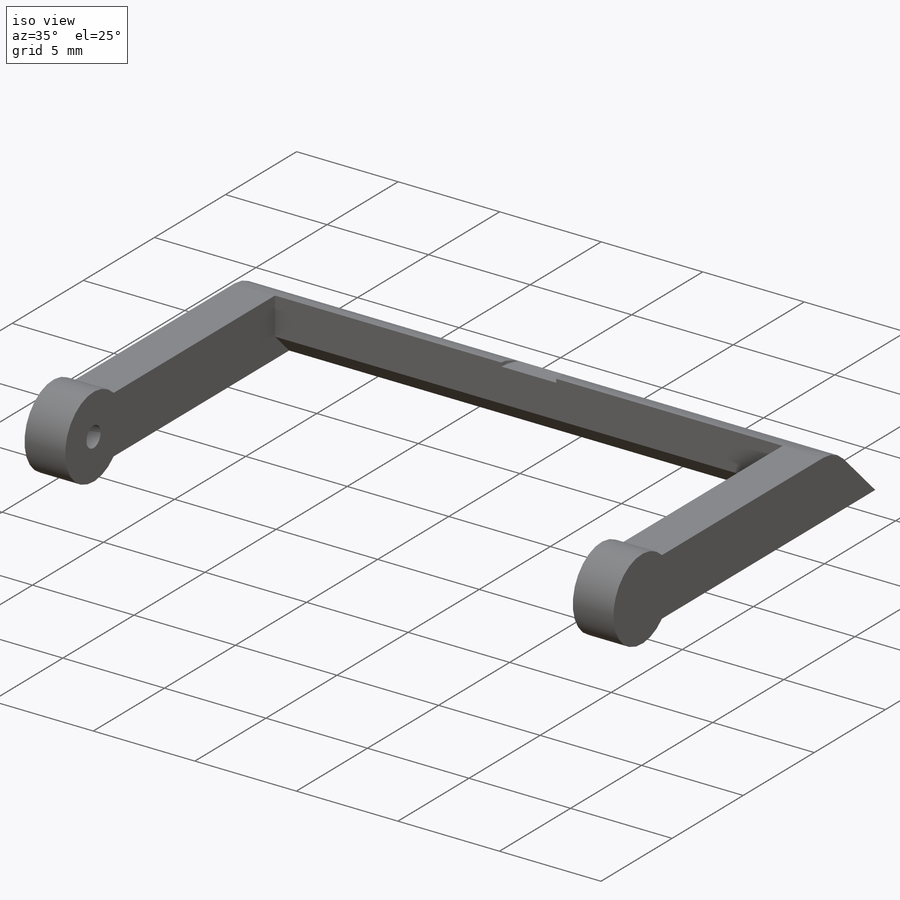
[diagram: iso view]
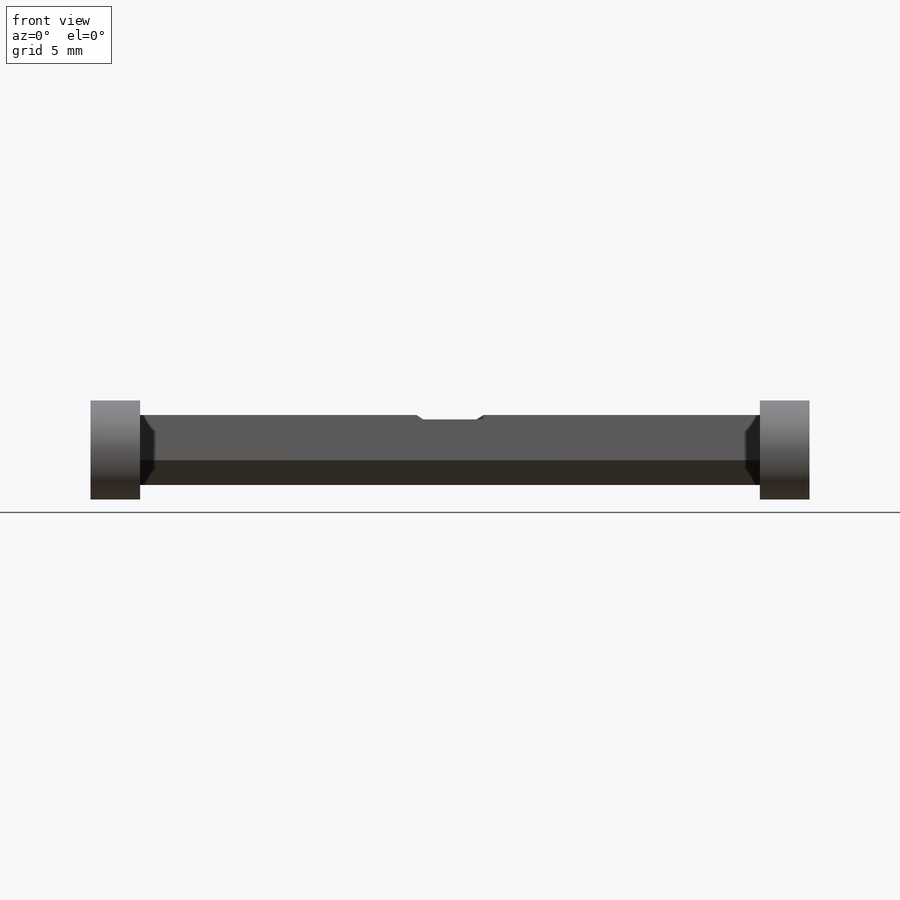
[diagram: front view]
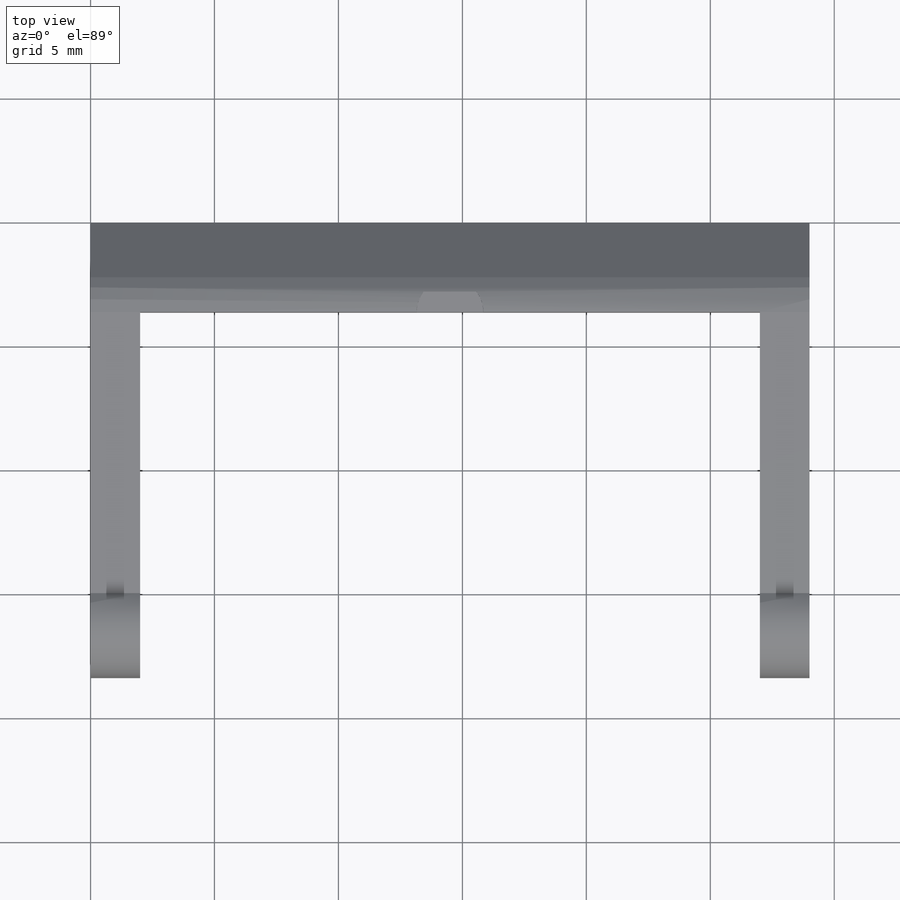
[diagram: top view]
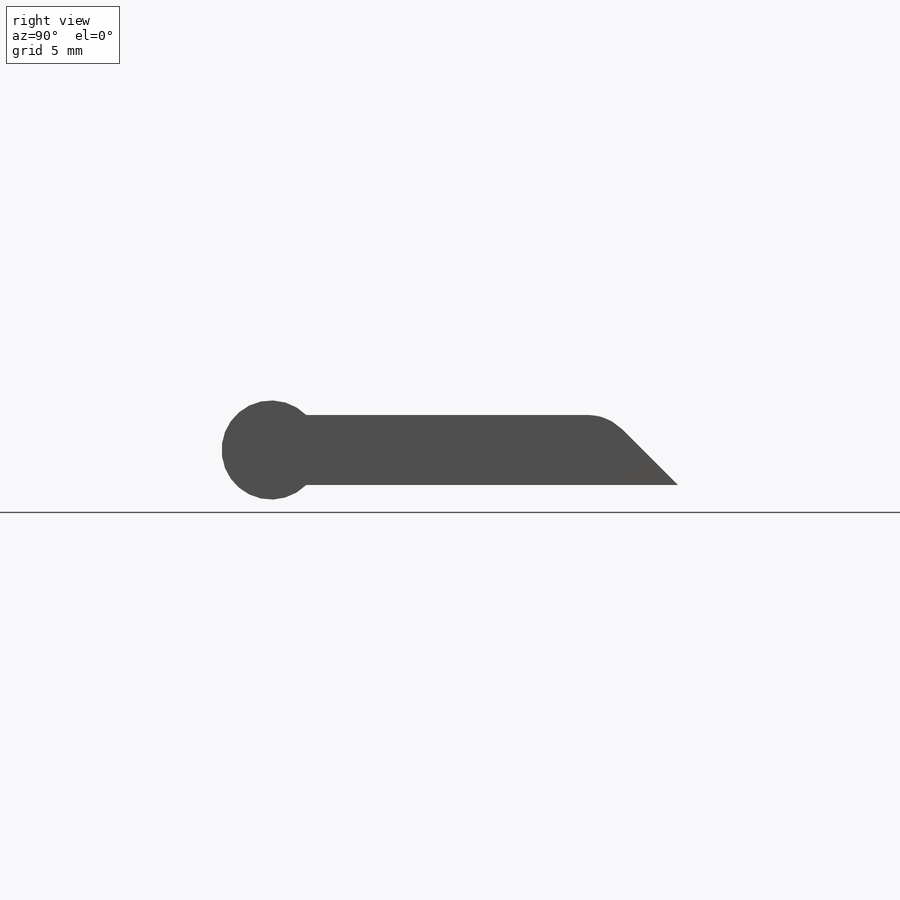
[diagram: right view]
SOLIDWORKS PART (.sldprt)
format: sldprt  version: not decoded by parser v0  size: 179,712 bytes
history: native  units: mm
features: plane x5, sketch x5, cut_extrude x4, material x1, extrude x1, chamfer x1 (+8 scaffold rows collapsed)
feature tree (25):
  scaffold x8  (default folders/planes/origin — collapsed)
  material  "Material <sin especificar>"
  plane  "Alzado"
  plane  "Planta"
  plane  "Vista lateral"
  sketch  "Croquis1"  dims[c1.D4=2.0mm c1.D2=2.0mm c1.D1=15.0mm c2.D2=4.0mm c2.D3=4.0mm c3.D3=45.0deg]
  extrude  "Saliente-Extruir1"  Depth=29mm
  plane  "Plano1"  Offset=0mm
  sketch  "Croquis2"  dims[D1=2.0mm D2=2.0mm]
  cut_extrude  "Cortar-Extruir1"  Depth=29mm
  chamfer  "Chaflán1"  Distance=1mm Angle=45deg
  sketch  "Croquis3"  dims[D1=1.0mm]
  cut_extrude  "Cortar-Extruir2"  Depth=1mm
  sketch  "Croquis4"  dims[D1=1.0mm]
  cut_extrude  "Cortar-Extruir3"  Depth=1mm
  plane  "Plano2"  Offset=2.85mm
  sketch  "Croquis5"  dims[D1=2.7mm]
  cut_extrude  "Cortar-Extruir5"  Depth=0.2mm
decode coverage: 11 of 11 modeling features carry decoded parameters
note: suppression state not decoded; provenance and decode notes live in map.json
